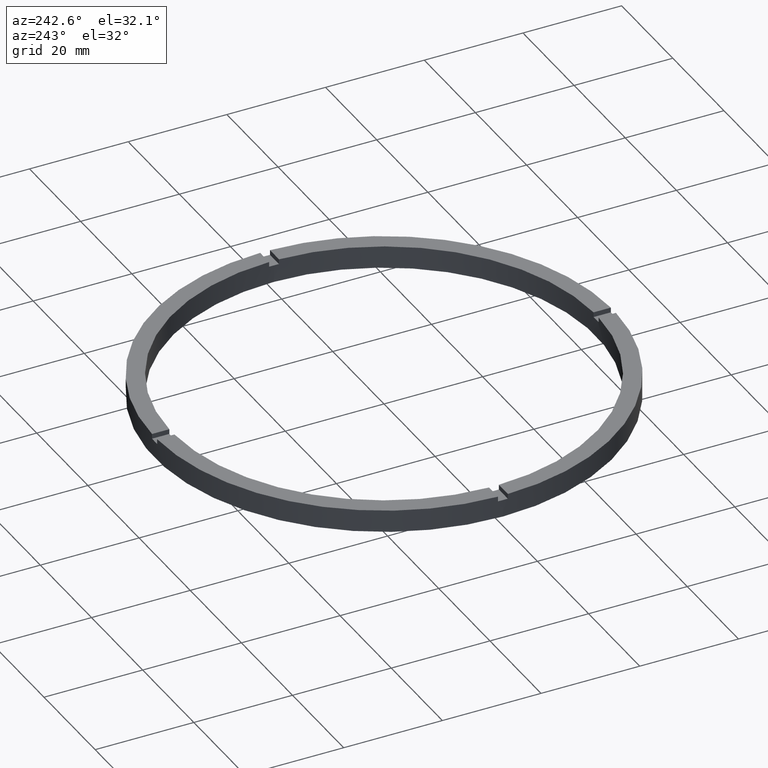
[diagram: clean part render]
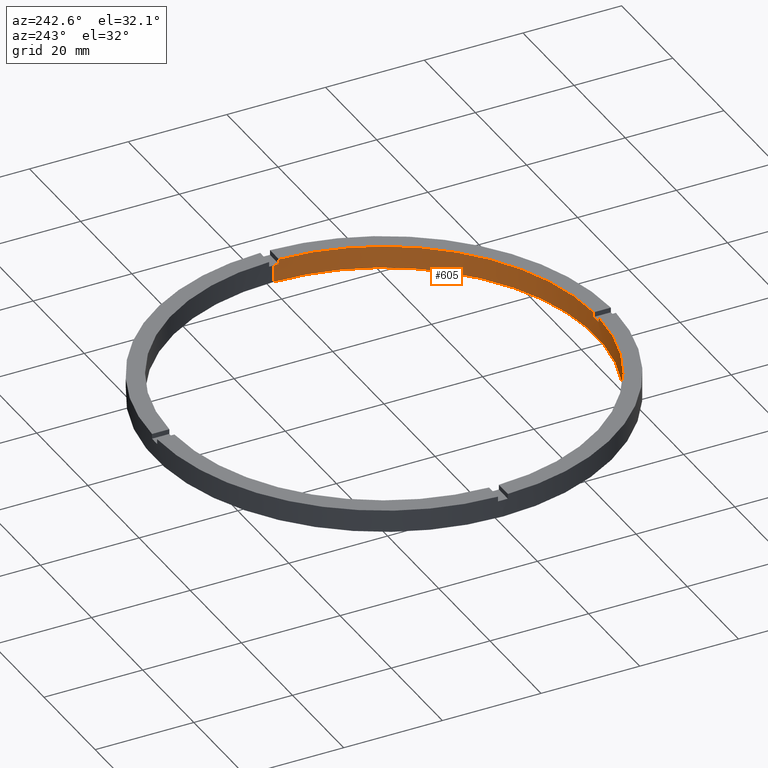
[diagram: same view with one face highlighted and labeled with its STEP entity id]
A machine part, auxiliary view. The second image highlights one B-rep face of the part: STEP entity #605.
In plain terms, the highlighted cylindrical surface (partial cylindrical patch) has radius 43 mm, axis along (-0, -0, -1).
Its self-contained STEP definition (entity closure, byte-faithful):
#1 = LINE ( 'NONE', #82, #757 ) ;
#4 = EDGE_CURVE ( 'NONE', #382, #200, #763, .T. ) ;
#35 = EDGE_CURVE ( 'NONE', #400, #198, #250, .T. ) ;
#47 = AXIS2_PLACEMENT_3D ( 'NONE', #323, #450, #531 ) ;
#49 = DIRECTION ( 'NONE',  ( -0.000000000000000000, -0.000000000000000000, -1.000000000000000000 ) ) ;
#55 = DIRECTION ( 'NONE',  ( 1.000000000000000000, 0.000000000000000000, 0.000000000000000000 ) ) ;
#62 = DIRECTION ( 'NONE',  ( -0.000000000000000000, -0.000000000000000000, -1.000000000000000000 ) ) ;
#80 = DIRECTION ( 'NONE',  ( 0.000000000000000000, 0.000000000000000000, 1.000000000000000000 ) ) ;
#82 = CARTESIAN_POINT ( 'NONE',  ( -42.98837052040935447, -1.000000000000029754, 4.500000000000000000 ) ) ;
#85 = CARTESIAN_POINT ( 'NONE',  ( 42.98837052040934736, -1.000000000000156097, 4.500000000000000000 ) ) ;
#98 = VERTEX_POINT ( 'NONE', #527 ) ;
#100 = EDGE_CURVE ( 'NONE', #98, #108, #1, .T. ) ;
#104 = CARTESIAN_POINT ( 'NONE',  ( -43.00000000000000000, 0.000000000000000000, 4.500000000000000000 ) ) ;
#108 = VERTEX_POINT ( 'NONE', #689 ) ;
#138 = DIRECTION ( 'NONE',  ( -0.000000000000000000, -0.000000000000000000, -1.000000000000000000 ) ) ;
#146 = DIRECTION ( 'NONE',  ( 1.000000000000000000, 0.000000000000000000, 0.000000000000000000 ) ) ;
#197 = EDGE_CURVE ( 'NONE', #646, #622, #252, .T. ) ;
#198 = VERTEX_POINT ( 'NONE', #632 ) ;
#200 = VERTEX_POINT ( 'NONE', #443 ) ;
#205 = CIRCLE ( 'NONE', #643, 43.00000000000000000 ) ;
#206 = ORIENTED_EDGE ( 'NONE', *, *, #197, .T. ) ;
#209 = DIRECTION ( 'NONE',  ( -0.000000000000000000, 0.000000000000000000, 1.000000000000000000 ) ) ;
#216 = CYLINDRICAL_SURFACE ( 'NONE', #47, 43.00000000000000000 ) ;
#230 = ORIENTED_EDGE ( 'NONE', *, *, #579, .T. ) ;
#243 = DIRECTION ( 'NONE',  ( -0.000000000000000000, -0.000000000000000000, -1.000000000000000000 ) ) ;
#247 = ORIENTED_EDGE ( 'NONE', *, *, #406, .T. ) ;
#250 = LINE ( 'NONE', #546, #503 ) ;
#252 = CIRCLE ( 'NONE', #607, 43.00000000000000000 ) ;
#255 = VECTOR ( 'NONE', #62, 1000.000000000000000 ) ;
#273 = CARTESIAN_POINT ( 'NONE',  ( 43.00000000000000000, 5.265981236333618470E-15, 4.500000000000000000 ) ) ;
#276 = AXIS2_PLACEMENT_3D ( 'NONE', #758, #80, #617 ) ;
#278 = CARTESIAN_POINT ( 'NONE',  ( 0.000000000000000000, 0.000000000000000000, 4.500000000000000000 ) ) ;
#285 = CARTESIAN_POINT ( 'NONE',  ( 42.98837052040934736, -1.000000000000156097, 3.499999999999999556 ) ) ;
#319 = VECTOR ( 'NONE', #243, 1000.000000000000000 ) ;
#323 = CARTESIAN_POINT ( 'NONE',  ( 0.000000000000000000, 0.000000000000000000, 4.500000000000000000 ) ) ;
#325 = LINE ( 'NONE', #504, #319 ) ;
#326 = CARTESIAN_POINT ( 'NONE',  ( 0.000000000000000000, 0.000000000000000000, 3.499999999999999556 ) ) ;
#327 = CIRCLE ( 'NONE', #276, 43.00000000000000000 ) ;
#333 = AXIS2_PLACEMENT_3D ( 'NONE', #652, #717, #55 ) ;
#338 = CIRCLE ( 'NONE', #333, 43.00000000000000000 ) ;
#348 = CARTESIAN_POINT ( 'NONE',  ( -43.00000000000000000, 0.000000000000000000, 3.499999999999999556 ) ) ;
#363 = EDGE_CURVE ( 'NONE', #728, #408, #325, .T. ) ;
#380 = DIRECTION ( 'NONE',  ( 0.000000000000000000, 0.000000000000000000, 1.000000000000000000 ) ) ;
#382 = VERTEX_POINT ( 'NONE', #348 ) ;
#383 = AXIS2_PLACEMENT_3D ( 'NONE', #529, #580, #628 ) ;
#387 = DIRECTION ( 'NONE',  ( 0.000000000000000000, 0.000000000000000000, 1.000000000000000000 ) ) ;
#393 = CARTESIAN_POINT ( 'NONE',  ( -1.000000000000158096, -42.98837052040934736, 3.499999999999999556 ) ) ;
#395 = CARTESIAN_POINT ( 'NONE',  ( 0.000000000000000000, 0.000000000000000000, 3.499999999999999556 ) ) ;
#400 = VERTEX_POINT ( 'NONE', #393 ) ;
#406 = EDGE_CURVE ( 'NONE', #382, #108, #327, .T. ) ;
#408 = VERTEX_POINT ( 'NONE', #766 ) ;
#413 = VERTEX_POINT ( 'NONE', #680 ) ;
#425 = DIRECTION ( 'NONE',  ( 0.000000000000000000, 0.000000000000000000, 1.000000000000000000 ) ) ;
#443 = CARTESIAN_POINT ( 'NONE',  ( -43.00000000000000000, 0.000000000000000000, 0.000000000000000000 ) ) ;
#450 = DIRECTION ( 'NONE',  ( -0.000000000000000000, -0.000000000000000000, -1.000000000000000000 ) ) ;
#463 = ORIENTED_EDGE ( 'NONE', *, *, #533, .F. ) ;
#471 = ORIENTED_EDGE ( 'NONE', *, *, #683, .T. ) ;
#474 = ORIENTED_EDGE ( 'NONE', *, *, #4, .F. ) ;
#475 = LINE ( 'NONE', #273, #482 ) ;
#477 = CIRCLE ( 'NONE', #713, 43.00000000000000000 ) ;
#479 = CARTESIAN_POINT ( 'NONE',  ( 43.00000000000000000, 5.265981236333618470E-15, 3.499999999999999556 ) ) ;
#480 = LINE ( 'NONE', #85, #732 ) ;
#482 = VECTOR ( 'NONE', #138, 1000.000000000000000 ) ;
#488 = ORIENTED_EDGE ( 'NONE', *, *, #35, .F. ) ;
#489 = VERTEX_POINT ( 'NONE', #754 ) ;
#503 = VECTOR ( 'NONE', #425, 1000.000000000000000 ) ;
#504 = CARTESIAN_POINT ( 'NONE',  ( 0.9999999999998419042, -42.98837052040935447, 4.500000000000000000 ) ) ;
#527 = CARTESIAN_POINT ( 'NONE',  ( -42.98837052040935447, -1.000000000000029754, 4.500000000000000000 ) ) ;
#529 = CARTESIAN_POINT ( 'NONE',  ( 0.000000000000000000, 0.000000000000000000, 4.500000000000000000 ) ) ;
#531 = DIRECTION ( 'NONE',  ( -1.000000000000000000, 0.000000000000000000, 0.000000000000000000 ) ) ;
#533 = EDGE_CURVE ( 'NONE', #200, #489, #338, .T. ) ;
#539 = DIRECTION ( 'NONE',  ( 0.000000000000000000, 0.000000000000000000, 1.000000000000000000 ) ) ;
#546 = CARTESIAN_POINT ( 'NONE',  ( -1.000000000000158096, -42.98837052040934736, 4.500000000000000000 ) ) ;
#579 = EDGE_CURVE ( 'NONE', #400, #408, #477, .T. ) ;
#580 = DIRECTION ( 'NONE',  ( 0.000000000000000000, 0.000000000000000000, 1.000000000000000000 ) ) ;
#589 = EDGE_CURVE ( 'NONE', #98, #198, #205, .T. ) ;
#594 = EDGE_CURVE ( 'NONE', #622, #489, #475, .T. ) ;
#603 = EDGE_CURVE ( 'NONE', #646, #413, #480, .T. ) ;
#605 = ADVANCED_FACE ( 'NONE', ( #738 ), #216, .F. ) ;
#607 = AXIS2_PLACEMENT_3D ( 'NONE', #326, #380, #146 ) ;
#617 = DIRECTION ( 'NONE',  ( 1.000000000000000000, 0.000000000000000000, 0.000000000000000000 ) ) ;
#622 = VERTEX_POINT ( 'NONE', #479 ) ;
#625 = CARTESIAN_POINT ( 'NONE',  ( 0.9999999999998419042, -42.98837052040935447, 4.500000000000000000 ) ) ;
#628 = DIRECTION ( 'NONE',  ( 1.000000000000000000, 0.000000000000000000, 0.000000000000000000 ) ) ;
#632 = CARTESIAN_POINT ( 'NONE',  ( -1.000000000000158096, -42.98837052040934736, 4.500000000000000000 ) ) ;
#643 = AXIS2_PLACEMENT_3D ( 'NONE', #278, #387, #703 ) ;
#646 = VERTEX_POINT ( 'NONE', #285 ) ;
#652 = CARTESIAN_POINT ( 'NONE',  ( 0.000000000000000000, 0.000000000000000000, 0.000000000000000000 ) ) ;
#680 = CARTESIAN_POINT ( 'NONE',  ( 42.98837052040934736, -1.000000000000156097, 4.500000000000000000 ) ) ;
#682 = EDGE_LOOP ( 'NONE', ( #206, #700, #463, #474, #247, #770, #744, #488, #230, #685, #471, #686 ) ) ;
#683 = EDGE_CURVE ( 'NONE', #728, #413, #716, .T. ) ;
#685 = ORIENTED_EDGE ( 'NONE', *, *, #363, .F. ) ;
#686 = ORIENTED_EDGE ( 'NONE', *, *, #603, .F. ) ;
#689 = CARTESIAN_POINT ( 'NONE',  ( -42.98837052040935447, -1.000000000000029754, 3.499999999999999556 ) ) ;
#700 = ORIENTED_EDGE ( 'NONE', *, *, #594, .T. ) ;
#703 = DIRECTION ( 'NONE',  ( 1.000000000000000000, 0.000000000000000000, 0.000000000000000000 ) ) ;
#713 = AXIS2_PLACEMENT_3D ( 'NONE', #395, #209, #768 ) ;
#716 = CIRCLE ( 'NONE', #383, 43.00000000000000000 ) ;
#717 = DIRECTION ( 'NONE',  ( 0.000000000000000000, 0.000000000000000000, 1.000000000000000000 ) ) ;
#728 = VERTEX_POINT ( 'NONE', #625 ) ;
#732 = VECTOR ( 'NONE', #539, 1000.000000000000000 ) ;
#738 = FACE_OUTER_BOUND ( 'NONE', #682, .T. ) ;
#744 = ORIENTED_EDGE ( 'NONE', *, *, #589, .T. ) ;
#754 = CARTESIAN_POINT ( 'NONE',  ( 43.00000000000000000, 5.265981236333618470E-15, 0.000000000000000000 ) ) ;
#757 = VECTOR ( 'NONE', #49, 1000.000000000000000 ) ;
#758 = CARTESIAN_POINT ( 'NONE',  ( 0.000000000000000000, 0.000000000000000000, 3.499999999999999556 ) ) ;
#763 = LINE ( 'NONE', #104, #255 ) ;
#766 = CARTESIAN_POINT ( 'NONE',  ( 0.9999999999998419042, -42.98837052040935447, 3.499999999999999556 ) ) ;
#768 = DIRECTION ( 'NONE',  ( 1.000000000000000000, 0.000000000000000000, 0.000000000000000000 ) ) ;
#770 = ORIENTED_EDGE ( 'NONE', *, *, #100, .F. ) ;